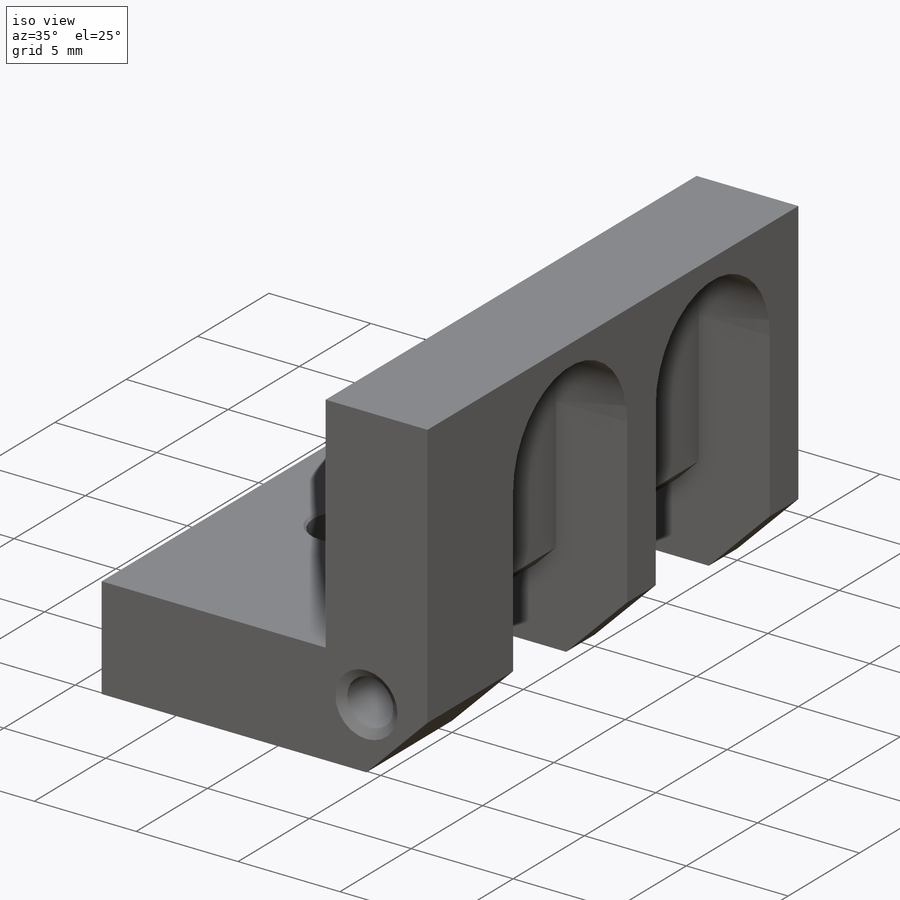
[diagram: iso view]
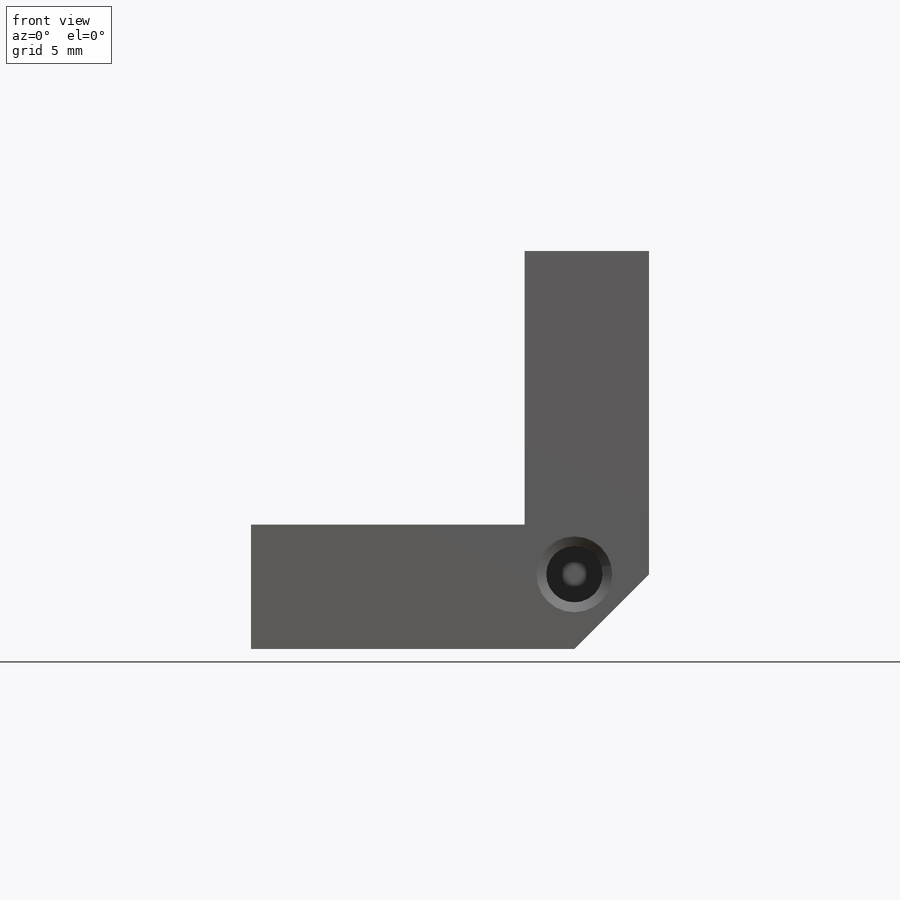
[diagram: front view]
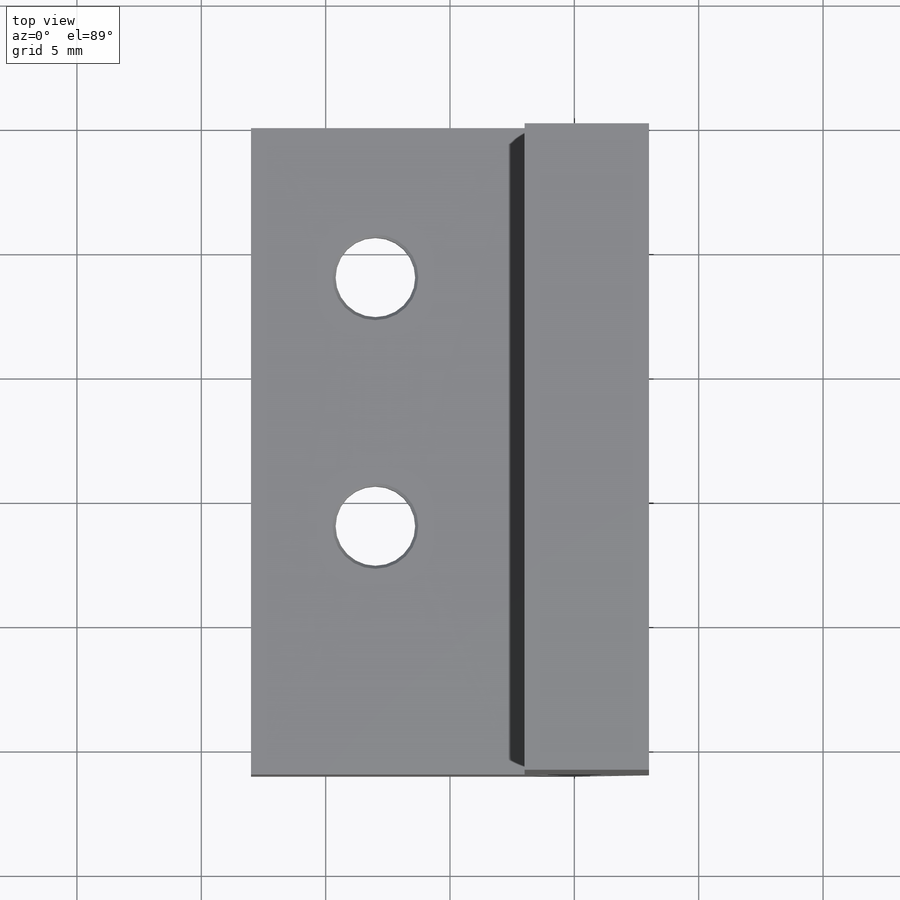
[diagram: top view]
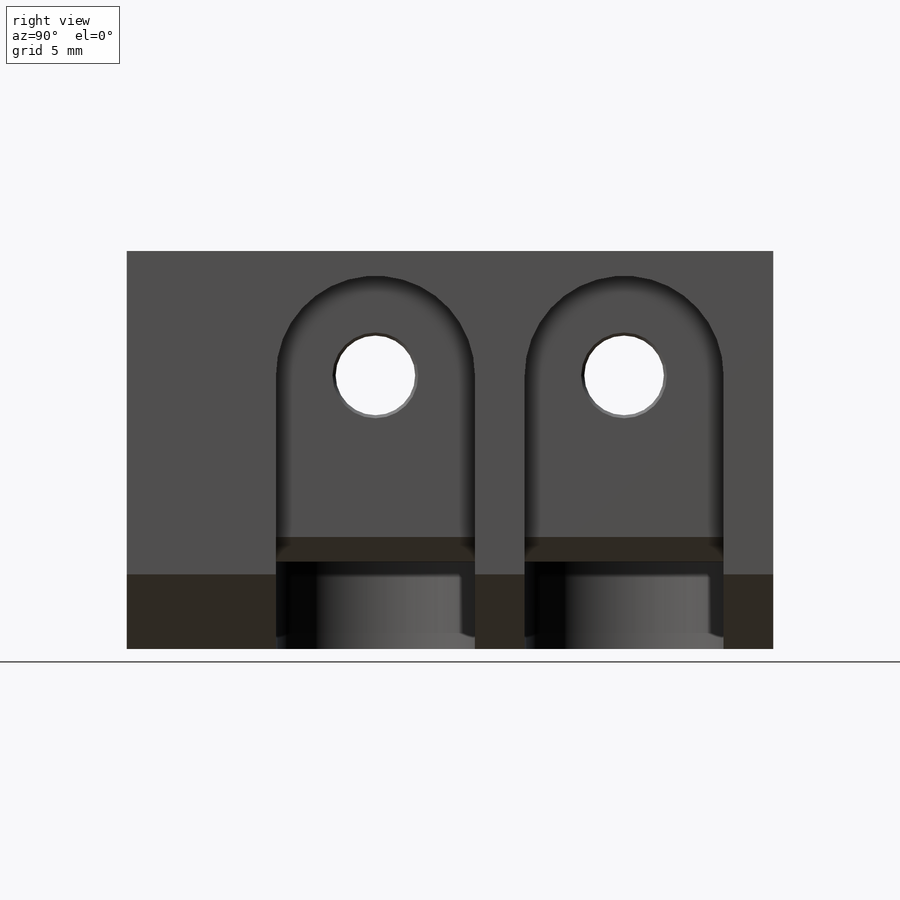
[diagram: right view]
SOLIDWORKS PART (.sldprt)
format: sldprt  version: not decoded by parser v0  size: 326,656 bytes
history: native  units: mm
features: sketch x8, plane x3, cut_extrude x3, chamfer x2, hole x2, material x1, extrude x1, thread x1 (+14 scaffold rows collapsed)
feature tree (35):
  scaffold x14  (default folders/planes/origin — collapsed)
  material  "6063-T1"
  plane  "Спереди"
  plane  "Сверху"
  plane  "Справа"
  sketch  "Эскиз1"  dims[D1=18.0mm D2=16.0mm]
  extrude  "Вытянуть1"  Depth=26mm
  sketch  "Эскиз2"  dims[c1.D3=0.5mm c1.D1=1.5mm c1.D2=1.5mm c2.D3=0.1mm c2.D1=5.0mm c2.D2=5.0mm]
  cut_extrude  "Вырез-Вытянуть1"  [1 undecoded]
  sketch  "Эскиз9"  dims[c1.D1=~2.378166mm c1.D2=4.0mm c1.D3=4.0mm c1.D4=4.0mm c2.D1=12.0mm c2.D3=10.0mm c2.D4=10.0mm c3.D1=6.0mm]
  cut_extrude  "Вырез-Вытянуть2"  Depth=1.5mm
  sketch  "Эскиз10"  dims[D1=6.0mm]
  cut_extrude  "Вырез-Вытянуть3"  Depth=1.5mm
  chamfer  "Фаска1"  Distance=1mm Angle=45deg
  hole  "Отверстие обработанное метчиком #4-401"  [1 undecoded]
  sketch  "Эскиз8"  dims[D1=2.0mm D2=2.0mm]
  sketch  "Эскиз7"  dims[hole-wizard template sketch: 54 standard entries collapsed; hole parameters kept: c17.Диаметр проходного сверла=2.2606mm c17.Глубина проходного сверла=6.0mm c17.Диаметр передней зенковки=3.048mm c17.D4=~3.666174mm c17.Угол передней зенковки=110.0deg]
  thread  "Отверстие резьбы1"  Diameter=2.8448mm  [1 undecoded]
  hole  "Отверстие с зазором M31"  [1 undecoded]
  sketch  "Трехмерный эскиз1"
  sketch  "Эскиз11"  dims[hole-wizard template sketch: 47 standard entries collapsed; hole parameters kept: c15.Глубина сквозного отверстия=1.5mm c15.Диаметр передней зенковки=3.45mm c15.D4=~3.666174mm c15.Угол передней зенковки=90.0deg c15.Диаметр задней зенковки=3.45mm c15.D6=~9.919017mm c15.Угол задней зенковки=90.0deg]
  chamfer  "Фаска3"  Distance=3mm Angle=45deg
decode coverage: 13 of 17 modeling features carry decoded parameters
note: ~ marks probable driven/reference dimensions
note: 4 parameter values undecoded
summary: no parameter record found for 3 features
note: suppression state not decoded; provenance and decode notes live in map.json
